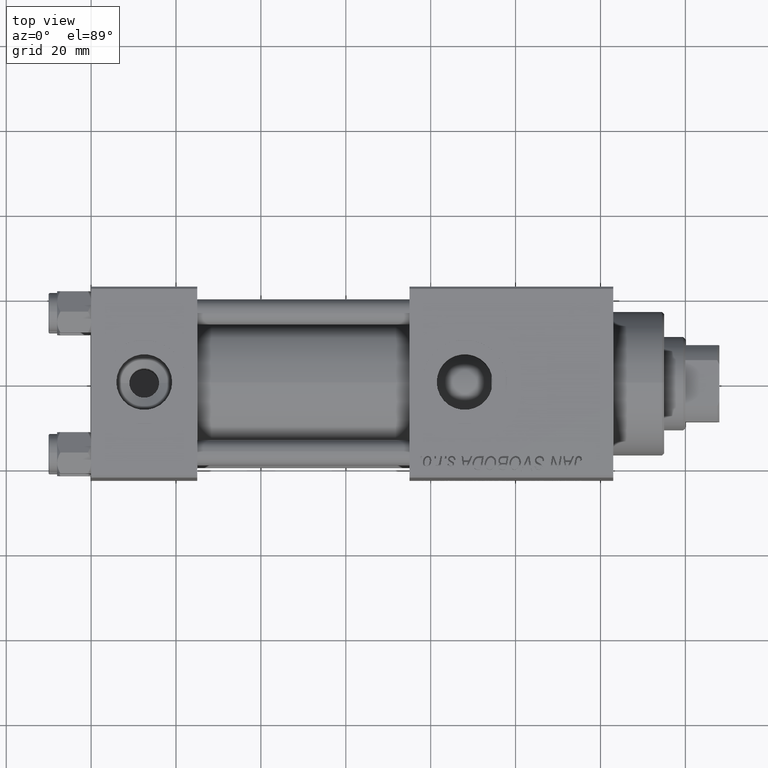
[diagram: clean part render]
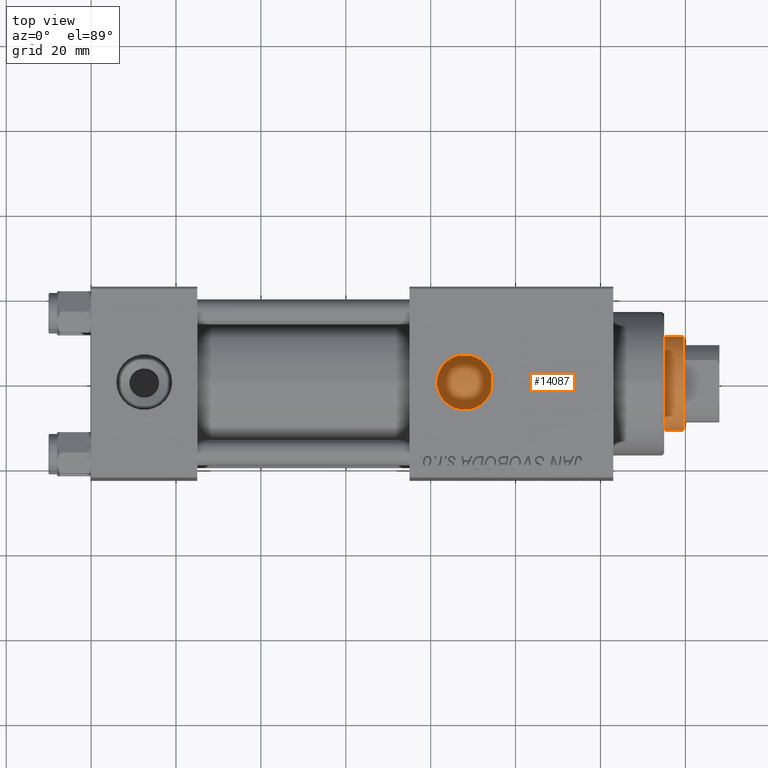
[diagram: same view with one face highlighted and labeled with its STEP entity id]
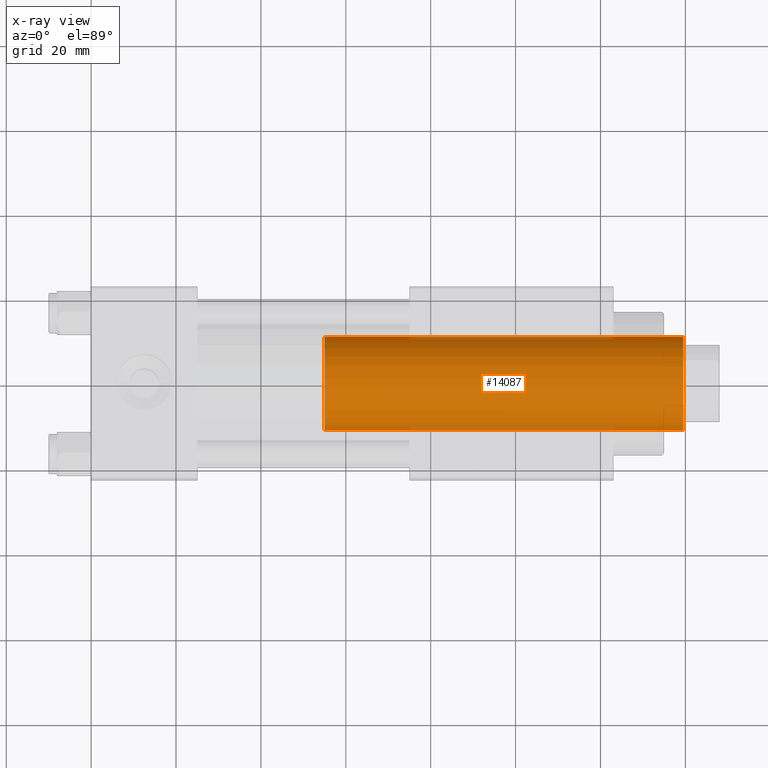
[diagram: x-ray of the same camera — body ghosted, the highlighted face saturated]
A machine part, top view. The second image highlights one B-rep face of the part: STEP entity #14087.
The next image is the same camera in x-ray: the body ghosted, the highlighted face saturated — about 3% of this face is hidden behind the body in this view.
In plain terms, the highlighted cylindrical surface (partial cylindrical patch) has radius 11 mm, axis along (-1, 0, 0).
Its self-contained STEP definition (entity closure, byte-faithful):
#1689 = DIRECTION ( 'NONE',  ( 1.000000000000000000, 0.000000000000000000, 0.000000000000000000 ) ) ;
#3671 = LINE ( 'NONE', #19747, #39065 ) ;
#4635 = CARTESIAN_POINT ( 'NONE',  ( 0.000000000000000000, 0.000000000000000000, 115.0000000000000000 ) ) ;
#5134 = DIRECTION ( 'NONE',  ( 0.000000000000000000, 0.000000000000000000, 1.000000000000000000 ) ) ;
#5423 = DIRECTION ( 'NONE',  ( -0.000000000000000000, -0.000000000000000000, -1.000000000000000000 ) ) ;
#5651 = CARTESIAN_POINT ( 'NONE',  ( 0.000000000000000000, 0.000000000000000000, 30.00000000000000000 ) ) ;
#5807 = CIRCLE ( 'NONE', #13369, 11.00000000000000000 ) ;
#6024 = EDGE_CURVE ( 'NONE', #52084, #47869, #3671, .T. ) ;
#9416 = EDGE_CURVE ( 'NONE', #44567, #17351, #48155, .T. ) ;
#11304 = EDGE_CURVE ( 'NONE', #17351, #47869, #48535, .T. ) ;
#13070 = ORIENTED_EDGE ( 'NONE', *, *, #21274, .T. ) ;
#13369 = AXIS2_PLACEMENT_3D ( 'NONE', #19138, #14663, #35486 ) ;
#13751 = ORIENTED_EDGE ( 'NONE', *, *, #9416, .T. ) ;
#14087 = ADVANCED_FACE ( 'NONE', ( #36792 ), #37587, .T. ) ;
#14663 = DIRECTION ( 'NONE',  ( 0.000000000000000000, 0.000000000000000000, -1.000000000000000000 ) ) ;
#17351 = VERTEX_POINT ( 'NONE', #50409 ) ;
#18297 = AXIS2_PLACEMENT_3D ( 'NONE', #4635, #5423, #21502 ) ;
#19138 = CARTESIAN_POINT ( 'NONE',  ( 0.000000000000000000, 0.000000000000000000, 114.5000000000000142 ) ) ;
#19747 = CARTESIAN_POINT ( 'NONE',  ( 11.00000000000000000, 1.347111479062088405E-15, 115.0000000000000000 ) ) ;
#20439 = CARTESIAN_POINT ( 'NONE',  ( -11.00000000000000000, 0.000000000000000000, 115.0000000000000000 ) ) ;
#21274 = EDGE_CURVE ( 'NONE', #52084, #44567, #5807, .T. ) ;
#21502 = DIRECTION ( 'NONE',  ( -1.000000000000000000, 0.000000000000000000, 0.000000000000000000 ) ) ;
#27906 = DIRECTION ( 'NONE',  ( -0.000000000000000000, -0.000000000000000000, -1.000000000000000000 ) ) ;
#28468 = ORIENTED_EDGE ( 'NONE', *, *, #11304, .T. ) ;
#29488 = EDGE_LOOP ( 'NONE', ( #36964, #13070, #13751, #28468 ) ) ;
#31663 = AXIS2_PLACEMENT_3D ( 'NONE', #5651, #5134, #1689 ) ;
#34325 = CARTESIAN_POINT ( 'NONE',  ( 11.00000000000000000, 1.347111479062088405E-15, 114.5000000000000142 ) ) ;
#35486 = DIRECTION ( 'NONE',  ( 1.000000000000000000, 0.000000000000000000, 0.000000000000000000 ) ) ;
#36293 = CARTESIAN_POINT ( 'NONE',  ( 11.00000000000000000, 1.347111479062088405E-15, 30.00000000000000000 ) ) ;
#36792 = FACE_OUTER_BOUND ( 'NONE', #29488, .T. ) ;
#36964 = ORIENTED_EDGE ( 'NONE', *, *, #6024, .F. ) ;
#37587 = CYLINDRICAL_SURFACE ( 'NONE', #18297, 11.00000000000000000 ) ;
#37919 = CARTESIAN_POINT ( 'NONE',  ( -11.00000000000000000, 0.000000000000000000, 114.5000000000000142 ) ) ;
#39065 = VECTOR ( 'NONE', #27906, 1000.000000000000000 ) ;
#40022 = VECTOR ( 'NONE', #45247, 1000.000000000000000 ) ;
#44567 = VERTEX_POINT ( 'NONE', #37919 ) ;
#45247 = DIRECTION ( 'NONE',  ( -0.000000000000000000, -0.000000000000000000, -1.000000000000000000 ) ) ;
#47869 = VERTEX_POINT ( 'NONE', #36293 ) ;
#48155 = LINE ( 'NONE', #20439, #40022 ) ;
#48535 = CIRCLE ( 'NONE', #31663, 11.00000000000000000 ) ;
#50409 = CARTESIAN_POINT ( 'NONE',  ( -11.00000000000000000, 0.000000000000000000, 30.00000000000000000 ) ) ;
#52084 = VERTEX_POINT ( 'NONE', #34325 ) ;